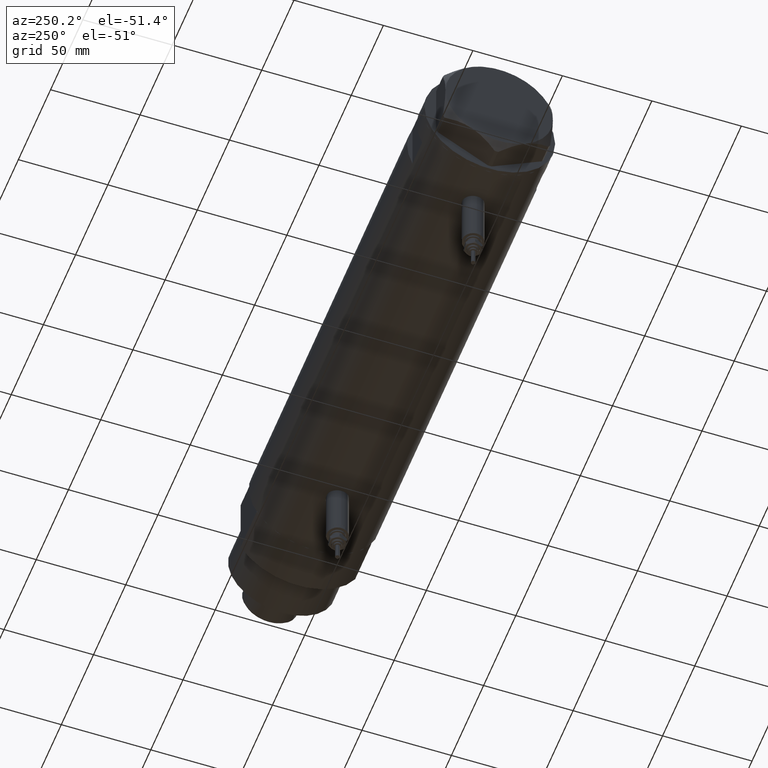
[diagram: clean part render]
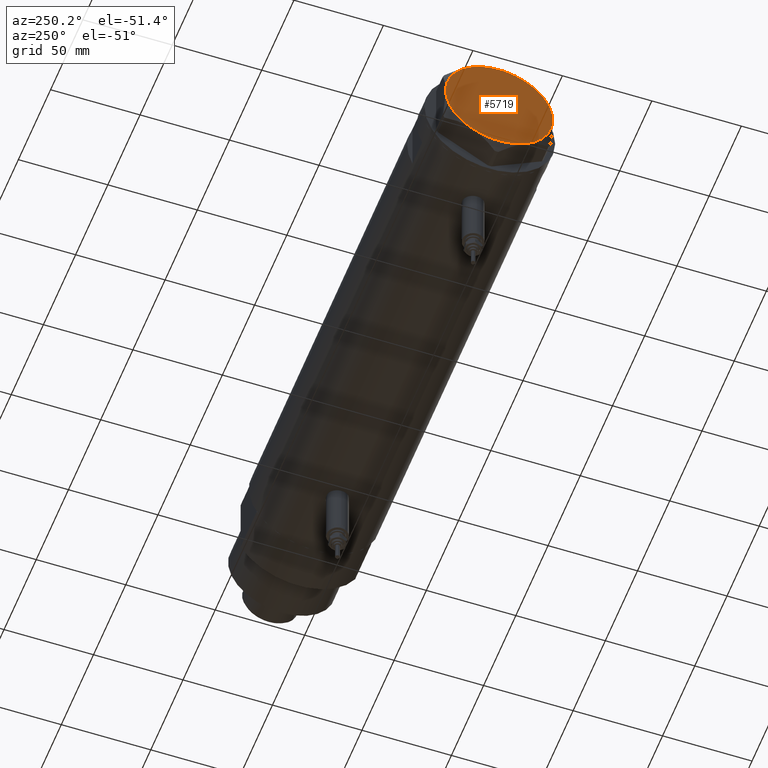
[diagram: same view with one face highlighted and labeled with its STEP entity id]
A machine part, auxiliary view. The second image highlights one B-rep face of the part: STEP entity #5719.
In plain terms, the highlighted planar face has unit normal (-1, -0, 0).
Its self-contained STEP definition (entity closure, byte-faithful):
#428 = VERTEX_POINT ( 'NONE', #5341 ) ;
#664 = DIRECTION ( 'NONE',  ( 1.000000000000000000, 0.000000000000000000, 0.000000000000000000 ) ) ;
#756 = ORIENTED_EDGE ( 'NONE', *, *, #3925, .T. ) ;
#914 = DIRECTION ( 'NONE',  ( 0.000000000000000000, 0.000000000000000000, 1.000000000000000000 ) ) ;
#1122 = CARTESIAN_POINT ( 'NONE',  ( 0.000000000000000000, 0.000000000000000000, 14.50000000000000000 ) ) ;
#1128 = AXIS2_PLACEMENT_3D ( 'NONE', #3351, #5624, #1908 ) ;
#1186 = DIRECTION ( 'NONE',  ( 0.000000000000000000, 0.000000000000000000, 1.000000000000000000 ) ) ;
#1250 = VERTEX_POINT ( 'NONE', #2835 ) ;
#1295 = EDGE_CURVE ( 'NONE', #1250, #428, #2561, .T. ) ;
#1303 = DIRECTION ( 'NONE',  ( 0.000000000000000000, 0.000000000000000000, 1.000000000000000000 ) ) ;
#1516 = AXIS2_PLACEMENT_3D ( 'NONE', #4183, #5050, #5564 ) ;
#1626 = ORIENTED_EDGE ( 'NONE', *, *, #4166, .T. ) ;
#1650 = AXIS2_PLACEMENT_3D ( 'NONE', #1697, #2504, #3952 ) ;
#1672 = FACE_OUTER_BOUND ( 'NONE', #2948, .T. ) ;
#1697 = CARTESIAN_POINT ( 'NONE',  ( 0.000000000000000000, 0.000000000000000000, 14.50000000000000000 ) ) ;
#1775 = EDGE_CURVE ( 'NONE', #3378, #1789, #4109, .T. ) ;
#1789 = VERTEX_POINT ( 'NONE', #2886 ) ;
#1908 = DIRECTION ( 'NONE',  ( 1.000000000000000000, 0.000000000000000000, 0.000000000000000000 ) ) ;
#2062 = DIRECTION ( 'NONE',  ( 1.000000000000000000, 0.000000000000000000, 0.000000000000000000 ) ) ;
#2303 = AXIS2_PLACEMENT_3D ( 'NONE', #3681, #1303, #4962 ) ;
#2504 = DIRECTION ( 'NONE',  ( 0.000000000000000000, 0.000000000000000000, 1.000000000000000000 ) ) ;
#2561 = CIRCLE ( 'NONE', #1128, 30.00000000000000000 ) ;
#2562 = PLANE ( 'NONE',  #1650 ) ;
#2563 = CARTESIAN_POINT ( 'NONE',  ( 30.00000000000000000, 9.013887592422954582E-15, 14.50000000000000000 ) ) ;
#2835 = CARTESIAN_POINT ( 'NONE',  ( -30.00000000000000000, 0.000000000000000000, 14.50000000000000000 ) ) ;
#2886 = CARTESIAN_POINT ( 'NONE',  ( 14.99999999999999467, 25.98076211353316367, 14.50000000000000000 ) ) ;
#2948 = EDGE_LOOP ( 'NONE', ( #1626, #4779, #4840, #756, #4789, #4227 ) ) ;
#2957 = VERTEX_POINT ( 'NONE', #3399 ) ;
#3351 = CARTESIAN_POINT ( 'NONE',  ( 0.000000000000000000, 0.000000000000000000, 14.50000000000000000 ) ) ;
#3378 = VERTEX_POINT ( 'NONE', #2563 ) ;
#3399 = CARTESIAN_POINT ( 'NONE',  ( 14.99999999999998757, -25.98076211353316722, 14.50000000000000000 ) ) ;
#3450 = AXIS2_PLACEMENT_3D ( 'NONE', #4369, #1186, #2062 ) ;
#3464 = CIRCLE ( 'NONE', #4900, 30.00000000000000000 ) ;
#3490 = EDGE_CURVE ( 'NONE', #428, #2957, #5078, .T. ) ;
#3663 = AXIS2_PLACEMENT_3D ( 'NONE', #4559, #914, #4587 ) ;
#3681 = CARTESIAN_POINT ( 'NONE',  ( 0.000000000000000000, 0.000000000000000000, 14.50000000000000000 ) ) ;
#3925 = EDGE_CURVE ( 'NONE', #5812, #1250, #5379, .T. ) ;
#3933 = CIRCLE ( 'NONE', #3663, 30.00000000000000000 ) ;
#3952 = DIRECTION ( 'NONE',  ( 1.000000000000000000, 0.000000000000000000, -0.000000000000000000 ) ) ;
#4109 = CIRCLE ( 'NONE', #1516, 30.00000000000000000 ) ;
#4166 = EDGE_CURVE ( 'NONE', #2957, #3378, #3933, .T. ) ;
#4183 = CARTESIAN_POINT ( 'NONE',  ( 0.000000000000000000, 0.000000000000000000, 14.50000000000000000 ) ) ;
#4227 = ORIENTED_EDGE ( 'NONE', *, *, #3490, .T. ) ;
#4369 = CARTESIAN_POINT ( 'NONE',  ( 0.000000000000000000, 0.000000000000000000, 14.50000000000000000 ) ) ;
#4559 = CARTESIAN_POINT ( 'NONE',  ( 0.000000000000000000, 0.000000000000000000, 14.50000000000000000 ) ) ;
#4566 = EDGE_CURVE ( 'NONE', #1789, #5812, #3464, .T. ) ;
#4587 = DIRECTION ( 'NONE',  ( 1.000000000000000000, 0.000000000000000000, 0.000000000000000000 ) ) ;
#4779 = ORIENTED_EDGE ( 'NONE', *, *, #1775, .T. ) ;
#4784 = DIRECTION ( 'NONE',  ( 0.000000000000000000, 0.000000000000000000, 1.000000000000000000 ) ) ;
#4789 = ORIENTED_EDGE ( 'NONE', *, *, #1295, .T. ) ;
#4840 = ORIENTED_EDGE ( 'NONE', *, *, #4566, .T. ) ;
#4900 = AXIS2_PLACEMENT_3D ( 'NONE', #1122, #4784, #664 ) ;
#4962 = DIRECTION ( 'NONE',  ( 1.000000000000000000, 0.000000000000000000, 0.000000000000000000 ) ) ;
#5050 = DIRECTION ( 'NONE',  ( 0.000000000000000000, 0.000000000000000000, 1.000000000000000000 ) ) ;
#5078 = CIRCLE ( 'NONE', #3450, 30.00000000000000000 ) ;
#5326 = CARTESIAN_POINT ( 'NONE',  ( -14.99999999999999645, 25.98076211353316367, 14.50000000000000000 ) ) ;
#5341 = CARTESIAN_POINT ( 'NONE',  ( -14.99999999999999645, -25.98076211353316367, 14.50000000000000000 ) ) ;
#5379 = CIRCLE ( 'NONE', #2303, 30.00000000000000000 ) ;
#5564 = DIRECTION ( 'NONE',  ( 1.000000000000000000, 0.000000000000000000, 0.000000000000000000 ) ) ;
#5624 = DIRECTION ( 'NONE',  ( 0.000000000000000000, 0.000000000000000000, 1.000000000000000000 ) ) ;
#5719 = ADVANCED_FACE ( 'NONE', ( #1672 ), #2562, .T. ) ;
#5812 = VERTEX_POINT ( 'NONE', #5326 ) ;